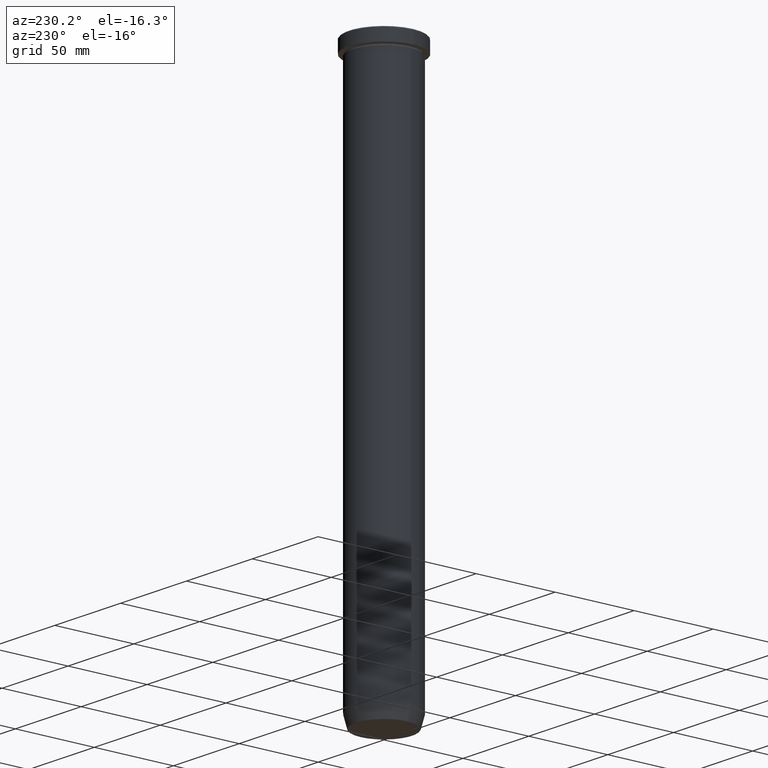
[diagram: clean part render]
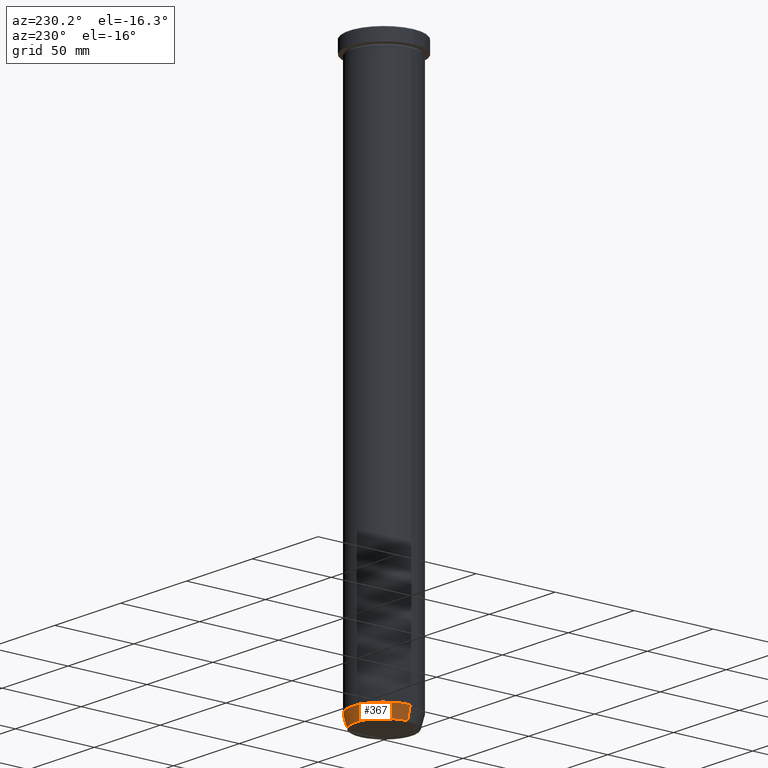
[diagram: same view with one face highlighted and labeled with its STEP entity id]
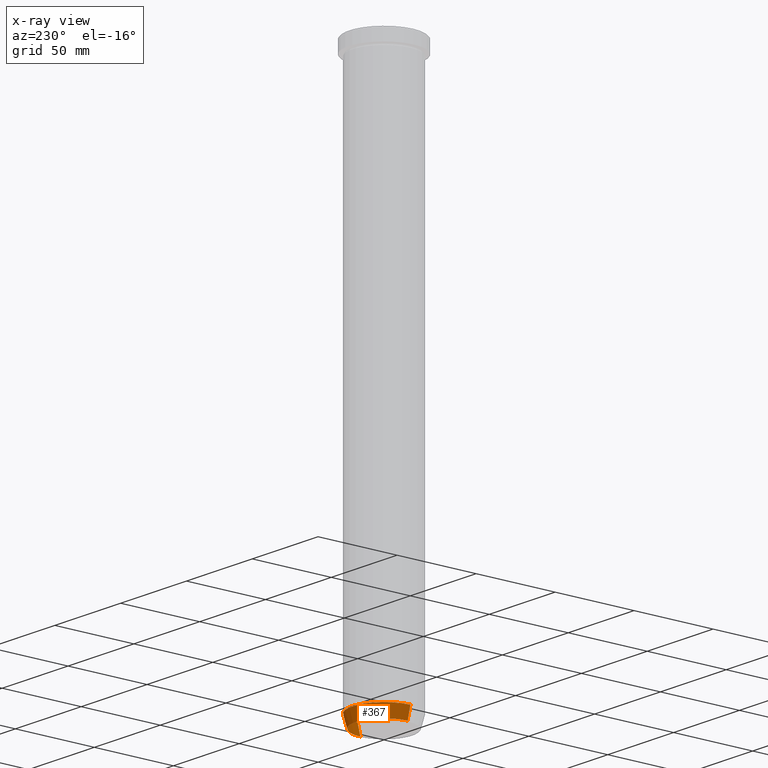
[diagram: x-ray of the same camera — body ghosted, the highlighted face saturated]
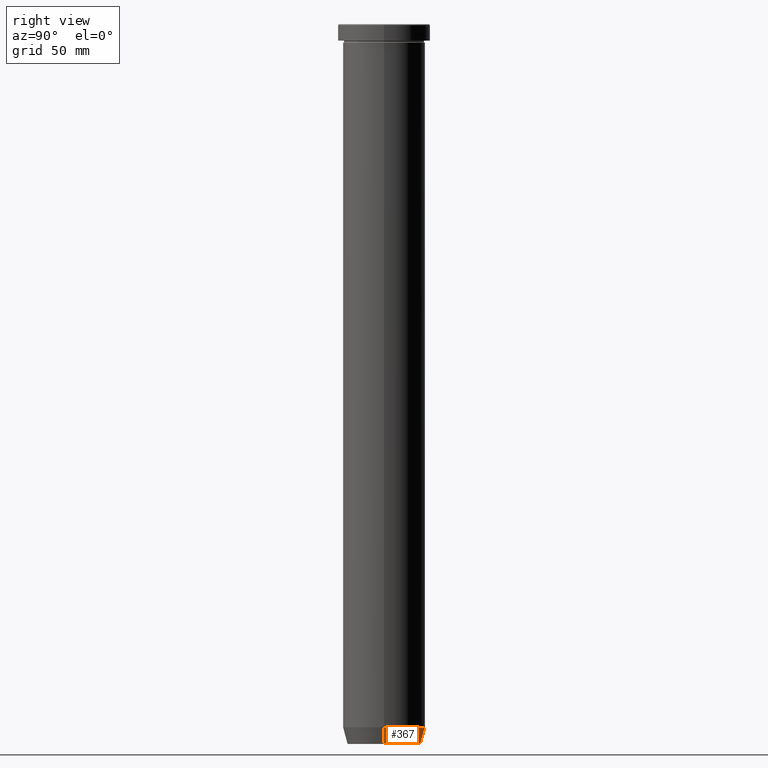
[diagram: same view with one face highlighted and labeled with its STEP entity id]
A machine part, auxiliary view. The second image highlights one B-rep face of the part: STEP entity #367.
The next image is the same camera in x-ray: the body ghosted, the highlighted face saturated — about 0% of this face is hidden behind the body in this view.
A second angle (right view) of the same face is appended — the face is thin or edge-on in the first view.
In plain terms, the highlighted conical surface has half-angle 15 deg.
Its self-contained STEP definition (entity closure, byte-faithful):
#22 = CONICAL_SURFACE ( 'NONE', #395, 17.85640646055101399, 0.2617993877991499629 ) ;
#35 = AXIS2_PLACEMENT_3D ( 'NONE', #36, #310, #318 ) ;
#36 = CARTESIAN_POINT ( 'NONE',  ( 0.000000000000000000, 0.000000000000000000, -342.0000000000000000 ) ) ;
#72 = CARTESIAN_POINT ( 'NONE',  ( 17.95570587970608045, 0.000000000000000000, -349.6294095225512706 ) ) ;
#79 = FACE_OUTER_BOUND ( 'NONE', #457, .T. ) ;
#108 = VECTOR ( 'NONE', #506, 1000.000000000000114 ) ;
#123 = AXIS2_PLACEMENT_3D ( 'NONE', #278, #192, #507 ) ;
#133 = EDGE_CURVE ( 'NONE', #267, #265, #377, .T. ) ;
#143 = CARTESIAN_POINT ( 'NONE',  ( 17.85640646055101399, 0.000000000000000000, -350.0000000000000568 ) ) ;
#156 = ORIENTED_EDGE ( 'NONE', *, *, #293, .T. ) ;
#192 = DIRECTION ( 'NONE',  ( -0.000000000000000000, -0.000000000000000000, 1.000000000000000000 ) ) ;
#221 = VERTEX_POINT ( 'NONE', #580 ) ;
#223 = DIRECTION ( 'NONE',  ( 1.000000000000000000, 0.000000000000000000, 0.000000000000000000 ) ) ;
#265 = VERTEX_POINT ( 'NONE', #302 ) ;
#267 = VERTEX_POINT ( 'NONE', #72 ) ;
#278 = CARTESIAN_POINT ( 'NONE',  ( 0.000000000000000000, 0.000000000000000000, -349.6294095225512706 ) ) ;
#279 = ORIENTED_EDGE ( 'NONE', *, *, #133, .T. ) ;
#287 = CARTESIAN_POINT ( 'NONE',  ( -20.00000000000000355, 2.449293598294706907E-15, -342.0000000000000000 ) ) ;
#293 = EDGE_CURVE ( 'NONE', #265, #579, #295, .T. ) ;
#295 = LINE ( 'NONE', #349, #305 ) ;
#302 = CARTESIAN_POINT ( 'NONE',  ( -17.95570587970608045, 2.324116685748021371E-15, -349.6294095225512706 ) ) ;
#305 = VECTOR ( 'NONE', #481, 1000.000000000000114 ) ;
#310 = DIRECTION ( 'NONE',  ( -0.000000000000000000, -0.000000000000000000, 1.000000000000000000 ) ) ;
#318 = DIRECTION ( 'NONE',  ( 1.000000000000000000, 0.000000000000000000, 0.000000000000000000 ) ) ;
#349 = CARTESIAN_POINT ( 'NONE',  ( -17.85640646055101399, 2.186779101618792051E-15, -350.0000000000000568 ) ) ;
#367 = ADVANCED_FACE ( 'NONE', ( #79 ), #22, .T. ) ;
#377 = CIRCLE ( 'NONE', #123, 17.95570587970608045 ) ;
#395 = AXIS2_PLACEMENT_3D ( 'NONE', #400, #397, #223 ) ;
#397 = DIRECTION ( 'NONE',  ( -0.000000000000000000, -0.000000000000000000, 1.000000000000000000 ) ) ;
#400 = CARTESIAN_POINT ( 'NONE',  ( 0.000000000000000000, 0.000000000000000000, -350.0000000000000568 ) ) ;
#402 = EDGE_CURVE ( 'NONE', #221, #579, #584, .T. ) ;
#410 = ORIENTED_EDGE ( 'NONE', *, *, #595, .F. ) ;
#424 = LINE ( 'NONE', #143, #108 ) ;
#457 = EDGE_LOOP ( 'NONE', ( #279, #156, #591, #410 ) ) ;
#481 = DIRECTION ( 'NONE',  ( -0.2588190451025212391, 3.169619151431771721E-17, 0.9659258262890680902 ) ) ;
#506 = DIRECTION ( 'NONE',  ( 0.2588190451025212391, 0.000000000000000000, 0.9659258262890680902 ) ) ;
#507 = DIRECTION ( 'NONE',  ( -1.000000000000000000, 0.000000000000000000, 0.000000000000000000 ) ) ;
#579 = VERTEX_POINT ( 'NONE', #287 ) ;
#580 = CARTESIAN_POINT ( 'NONE',  ( 20.00000000000000355, 0.000000000000000000, -342.0000000000000000 ) ) ;
#584 = CIRCLE ( 'NONE', #35, 20.00000000000000355 ) ;
#591 = ORIENTED_EDGE ( 'NONE', *, *, #402, .F. ) ;
#595 = EDGE_CURVE ( 'NONE', #267, #221, #424, .T. ) ;